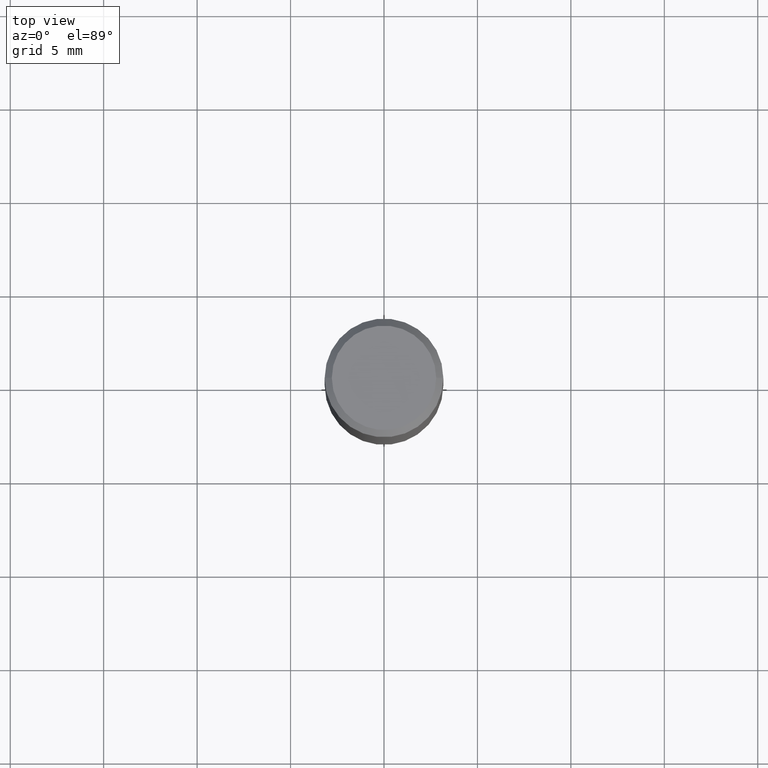
[diagram: clean part render]
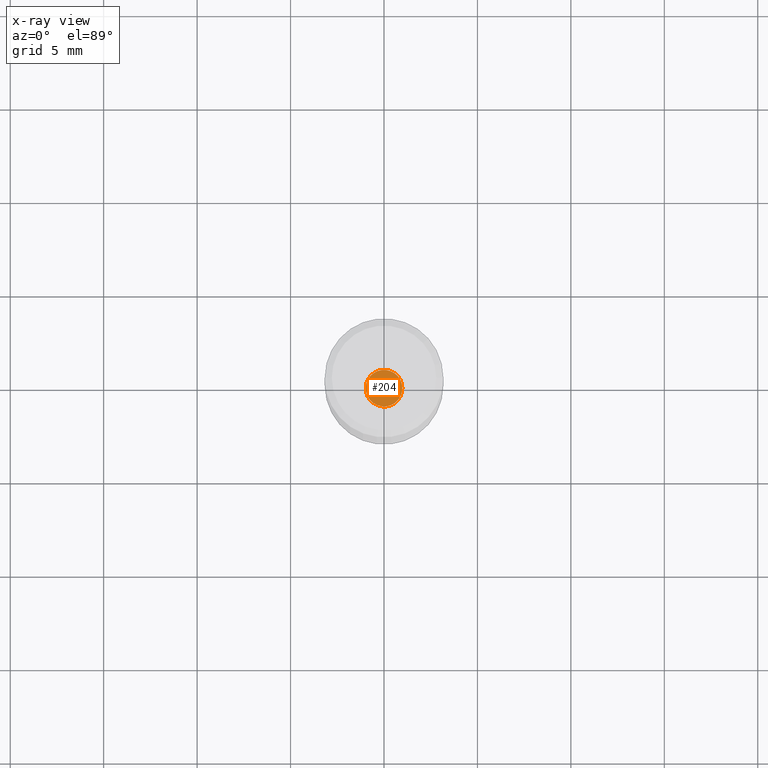
[diagram: x-ray — body ghosted, one internal face saturated and labeled with its STEP entity id]
A machine part, top view, then the same camera in x-ray: the body is ghosted and one INTERNAL B-rep face — a face not visible from any outside direction — is saturated and labeled: STEP entity #204.
In plain terms, the highlighted planar face has unit normal (-0, 0, 1).
Its self-contained STEP definition (entity closure, byte-faithful):
#32 = FACE_OUTER_BOUND ( 'NONE', #331, .T. ) ;
#33 = EDGE_CURVE ( 'NONE', #37, #307, #115, .T. ) ;
#37 = VERTEX_POINT ( 'NONE', #93 ) ;
#93 = CARTESIAN_POINT ( 'NONE',  ( 0.03855000000000000093, -4.689408586200227480E-15, -1.266000000000000014 ) ) ;
#94 = AXIS2_PLACEMENT_3D ( 'NONE', #439, #278, #274 ) ;
#99 = EDGE_CURVE ( 'NONE', #307, #37, #133, .T. ) ;
#115 = CIRCLE ( 'NONE', #94, 0.03855000000000000093 ) ;
#133 = CIRCLE ( 'NONE', #153, 0.03855000000000000093 ) ;
#141 = PLANE ( 'NONE',  #376 ) ;
#153 = AXIS2_PLACEMENT_3D ( 'NONE', #240, #277, #309 ) ;
#174 = CARTESIAN_POINT ( 'NONE',  ( 3.095963508630383106E-29, -4.420215374975422163E-15, -1.266000000000000014 ) ) ;
#204 = ADVANCED_FACE ( 'NONE', ( #32 ), #141, .F. ) ;
#228 = ORIENTED_EDGE ( 'NONE', *, *, #33, .F. ) ;
#240 = CARTESIAN_POINT ( 'NONE',  ( 3.095963508630383106E-29, -4.420215374975422163E-15, -1.266000000000000014 ) ) ;
#274 = DIRECTION ( 'NONE',  ( 1.000000000000000000, -6.982962677686253300E-15, 0.000000000000000000 ) ) ;
#277 = DIRECTION ( 'NONE',  ( -2.445468806185136597E-29, 3.491481338843145583E-15, 1.000000000000000000 ) ) ;
#278 = DIRECTION ( 'NONE',  ( -2.445468806185136597E-29, 3.491481338843145583E-15, 1.000000000000000000 ) ) ;
#307 = VERTEX_POINT ( 'NONE', #429 ) ;
#309 = DIRECTION ( 'NONE',  ( 1.000000000000000000, -6.982962677686253300E-15, 0.000000000000000000 ) ) ;
#331 = EDGE_LOOP ( 'NONE', ( #228, #466 ) ) ;
#355 = DIRECTION ( 'NONE',  ( -2.438088387897960049E-29, 3.491481338843145188E-15, 1.000000000000000000 ) ) ;
#376 = AXIS2_PLACEMENT_3D ( 'NONE', #174, #355, #463 ) ;
#429 = CARTESIAN_POINT ( 'NONE',  ( -0.03855000000000000093, -4.143651923165793320E-15, -1.266000000000000014 ) ) ;
#439 = CARTESIAN_POINT ( 'NONE',  ( 3.095963508630383106E-29, -4.420215374975422163E-15, -1.266000000000000014 ) ) ;
#463 = DIRECTION ( 'NONE',  ( 1.000000000000000000, -6.982962677686265922E-15, 4.876176775795935793E-29 ) ) ;
#466 = ORIENTED_EDGE ( 'NONE', *, *, #99, .F. ) ;